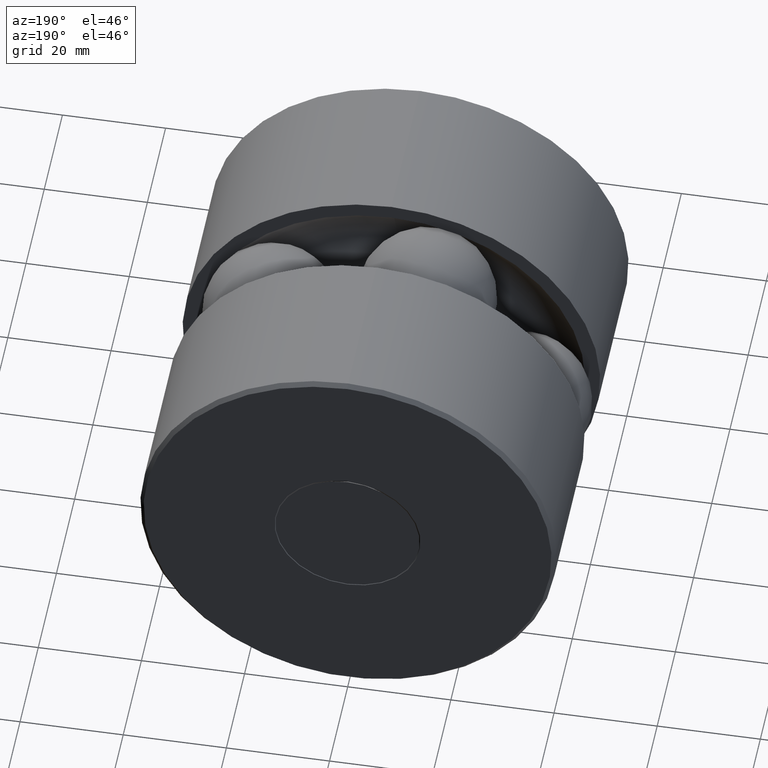
[diagram: clean part render]
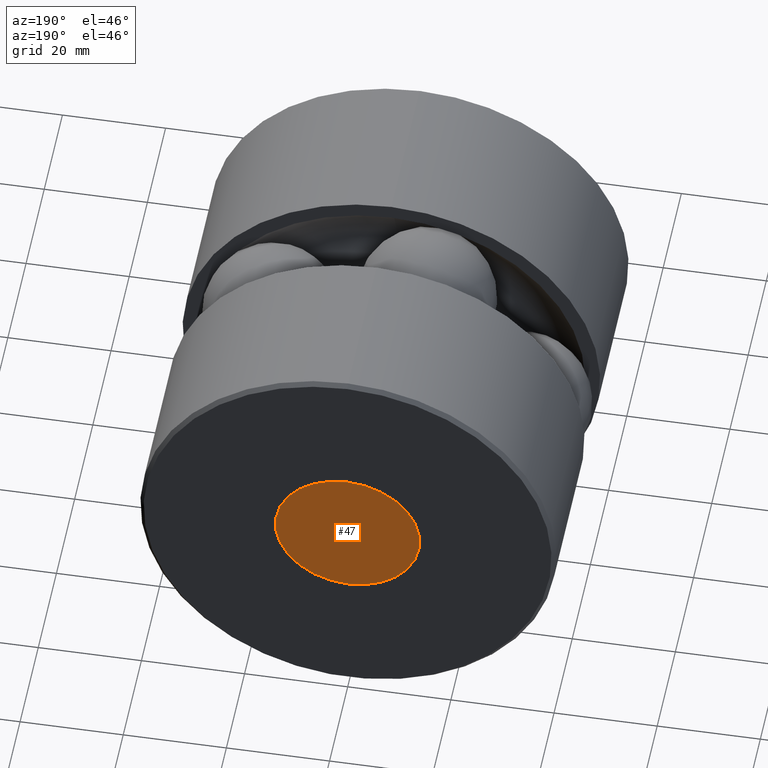
[diagram: same view with one face highlighted and labeled with its STEP entity id]
A machine part, auxiliary view. The second image highlights one B-rep face of the part: STEP entity #47.
In plain terms, the highlighted planar face has unit normal (-0, 1, 0).
Its self-contained STEP definition (entity closure, byte-faithful):
#47 = ADVANCED_FACE ( 'NONE', ( #294 ), #110, .T. ) ;
#53 = EDGE_LOOP ( 'NONE', ( #220 ) ) ;
#59 = CARTESIAN_POINT ( 'NONE',  ( 0.0000000000000000000, 3.155999999999999700, 0.0000000000000000000 ) ) ;
#82 = DIRECTION ( 'NONE',  ( 0.0000000000000000000, 0.0000000000000000000, 1.000000000000000000 ) ) ;
#105 = CARTESIAN_POINT ( 'NONE',  ( 0.0000000000000000000, 3.155999999999999700, 0.5504999999999962100 ) ) ;
#110 = PLANE ( 'NONE',  #478 ) ;
#150 = DIRECTION ( 'NONE',  ( 0.0000000000000000000, 0.0000000000000000000, 1.000000000000000000 ) ) ;
#152 = DIRECTION ( 'NONE',  ( -0.0000000000000000000, 1.000000000000000000, -0.0000000000000000000 ) ) ;
#154 = CARTESIAN_POINT ( 'NONE',  ( 0.0000000000000000000, 3.155999999999999700, 0.0000000000000000000 ) ) ;
#159 = DIRECTION ( 'NONE',  ( -0.0000000000000000000, 1.000000000000000000, 0.0000000000000000000 ) ) ;
#220 = ORIENTED_EDGE ( 'NONE', *, *, #340, .T. ) ;
#290 = AXIS2_PLACEMENT_3D ( 'NONE', #154, #152, #150 ) ;
#294 = FACE_OUTER_BOUND ( 'NONE', #53, .T. ) ;
#340 = EDGE_CURVE ( 'NONE', #398, #398, #532, .T. ) ;
#398 = VERTEX_POINT ( 'NONE', #105 ) ;
#478 = AXIS2_PLACEMENT_3D ( 'NONE', #59, #159, #82 ) ;
#532 = CIRCLE ( 'NONE', #290, 0.5504999999999962100 ) ;